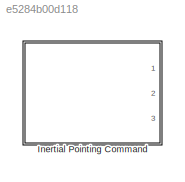
MODEL slx_e5284b00d118
KIND library
CONFIG AbsTol = auto
CONFIG FixedStep = auto
CONFIG MaxStep = auto
CONFIG MinStep = auto
CONFIG RelTol = 1e-3
CONFIG SampleTimeConstraint = Unconstrained
CONFIG Solver = VariableStepAuto
CONFIG SolverMode = Auto
CONFIG SolverName = VariableStepAuto
CONFIG StartTime = 0.0
CONFIG StopTime = 10.0
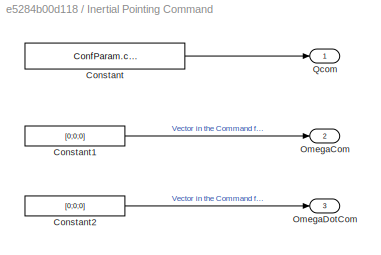
BLOCK [SubSystem] Inertial Pointing Command
  Ports = [0, 3]
  RequestExecContextInheritance = off
BLOCK [Constant] Inertial Pointing Command/Constant
  Value = ConfParam.confInerPoint.Qcom
BLOCK [Constant] Inertial Pointing Command/Constant1
  Value = [0;0;0]
BLOCK [Constant] Inertial Pointing Command/Constant2
  Value = [0;0;0]
BLOCK [Outport] Inertial Pointing Command/OmegaCom
  IconDisplay = Port number
  Port = 2
BLOCK [Outport] Inertial Pointing Command/OmegaDotCom
  IconDisplay = Port number
  Port = 3
BLOCK [Outport] Inertial Pointing Command/Qcom
  IconDisplay = Port number
LINE Inertial Pointing Command/Constant1:1 -> Inertial Pointing Command/OmegaCom:1
LINE Inertial Pointing Command/Constant2:1 -> Inertial Pointing Command/OmegaDotCom:1
LINE Inertial Pointing Command/Constant:1 -> Inertial Pointing Command/Qcom:1
